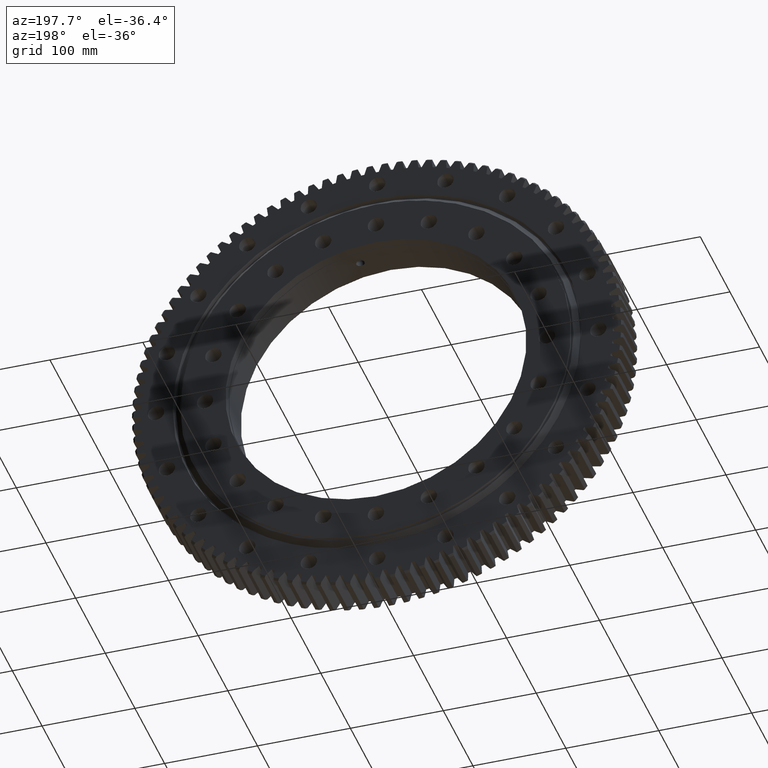
[diagram: clean part render]
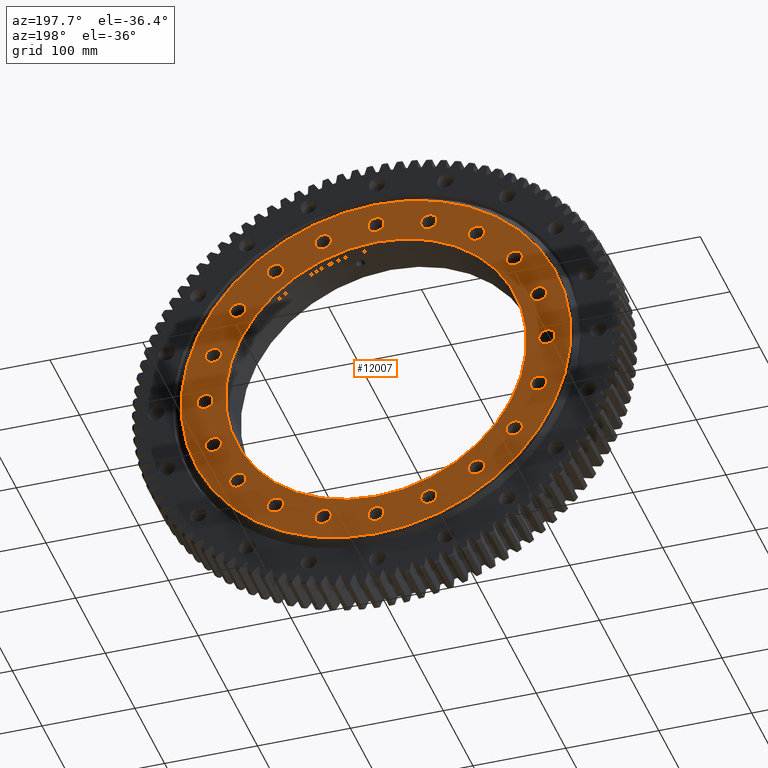
[diagram: same view with one face highlighted and labeled with its STEP entity id]
A machine part, auxiliary view. The second image highlights one B-rep face of the part: STEP entity #12007.
In plain terms, the highlighted planar face has unit normal (0, -1, 0).
Its self-contained STEP definition (entity closure, byte-faithful):
#53 = EDGE_LOOP ( 'NONE', ( #11007, #6164 ) ) ;
#180 = EDGE_CURVE ( 'NONE', #16531, #4082, #18659, .T. ) ;
#288 = DIRECTION ( 'NONE',  ( 0.0000000000000000000, 0.0000000000000000000, 1.000000000000000000 ) ) ;
#332 = CIRCLE ( 'NONE', #26550, 8.750000000000008900 ) ;
#368 = CARTESIAN_POINT ( 'NONE',  ( -174.9943989983088700, 26.99999999999997900, -65.60912696498857600 ) ) ;
#425 = EDGE_CURVE ( 'NONE', #6007, #21702, #18962, .T. ) ;
#471 = CARTESIAN_POINT ( 'NONE',  ( 56.85912696499056600, 26.99999999999998600, 174.9943989983081800 ) ) ;
#480 = EDGE_CURVE ( 'NONE', #1282, #13739, #23144, .T. ) ;
#510 = AXIS2_PLACEMENT_3D ( 'NONE', #10921, #25266, #12966 ) ;
#569 = DIRECTION ( 'NONE',  ( -3.081487911019577400E-033, 1.000000000000000000, -2.727064569436389700E-017 ) ) ;
#575 = DIRECTION ( 'NONE',  ( 0.9510565162951500900, 0.0000000000000000000, 0.3090169943749580000 ) ) ;
#585 = CARTESIAN_POINT ( 'NONE',  ( -108.1524864218163600, 26.99999999999997500, -148.8591269649893700 ) ) ;
#709 = ORIENTED_EDGE ( 'NONE', *, *, #20946, .F. ) ;
#728 = CARTESIAN_POINT ( 'NONE',  ( -148.8591269649913300, 26.99999999999997900, -99.40248642181360600 ) ) ;
#760 = CIRCLE ( 'NONE', #510, 8.750000000000014200 ) ;
#862 = CIRCLE ( 'NONE', #23913, 8.750000000000007100 ) ;
#893 = CIRCLE ( 'NONE', #10654, 8.750000000000008900 ) ;
#1008 = VERTEX_POINT ( 'NONE', #1975 ) ;
#1112 = VERTEX_POINT ( 'NONE', #3543 ) ;
#1222 = AXIS2_PLACEMENT_3D ( 'NONE', #25107, #12806, #575 ) ;
#1223 = VERTEX_POINT ( 'NONE', #15457 ) ;
#1282 = VERTEX_POINT ( 'NONE', #3079 ) ;
#1335 = CARTESIAN_POINT ( 'NONE',  ( -108.1524864218131400, 26.99999999999998600, 140.1091269649917600 ) ) ;
#1490 = ORIENTED_EDGE ( 'NONE', *, *, #17583, .F. ) ;
#1553 = DIRECTION ( 'NONE',  ( 6.162975822039154700E-033, 1.000000000000000000, -2.727064569436390300E-017 ) ) ;
#1577 = ORIENTED_EDGE ( 'NONE', *, *, #19407, .F. ) ;
#1607 = CARTESIAN_POINT ( 'NONE',  ( 56.85912696499056600, 26.99999999999998600, 183.7443989983081800 ) ) ;
#1643 = CARTESIAN_POINT ( 'NONE',  ( 174.9943989983084700, 26.99999999999998200, 56.85912696498977700 ) ) ;
#1649 = EDGE_CURVE ( 'NONE', #1223, #24769, #3588, .T. ) ;
#1662 = ORIENTED_EDGE ( 'NONE', *, *, #22255, .F. ) ;
#1715 = CIRCLE ( 'NONE', #25224, 162.0000000000000000 ) ;
#1738 = CIRCLE ( 'NONE', #19105, 8.749999999999998200 ) ;
#1760 = AXIS2_PLACEMENT_3D ( 'NONE', #23654, #15928, #5707 ) ;
#1783 = DIRECTION ( 'NONE',  ( 0.8090169943749407900, 0.0000000000000000000, 0.5877852522924824600 ) ) ;
#1814 = CARTESIAN_POINT ( 'NONE',  ( 56.85912696498916600, 26.99999999999997500, -166.2443989983086400 ) ) ;
#1863 = DIRECTION ( 'NONE',  ( -2.189528850507526700E-047, 1.000000000000000000, -2.727064569436389100E-017 ) ) ;
#1936 = EDGE_CURVE ( 'NONE', #10092, #20828, #23124, .T. ) ;
#1956 = EDGE_CURVE ( 'NONE', #6504, #25244, #4208, .T. ) ;
#1975 = CARTESIAN_POINT ( 'NONE',  ( 148.8591269649905700, 26.99999999999998200, 99.40248642181471400 ) ) ;
#2028 = VERTEX_POINT ( 'NONE', #22737 ) ;
#2124 = CARTESIAN_POINT ( 'NONE',  ( -174.9943989983076200, 26.99999999999998200, 56.85912696499237000 ) ) ;
#2142 = CARTESIAN_POINT ( 'NONE',  ( 108.1524864218142200, 26.99999999999997500, -148.8591269649909300 ) ) ;
#2263 = CARTESIAN_POINT ( 'NONE',  ( -174.9943989983088700, 26.99999999999997900, -56.85912696498856200 ) ) ;
#2283 = VERTEX_POINT ( 'NONE', #16803 ) ;
#2306 = CIRCLE ( 'NONE', #19066, 8.749999999999998200 ) ;
#2311 = ORIENTED_EDGE ( 'NONE', *, *, #10212, .T. ) ;
#2450 = DIRECTION ( 'NONE',  ( 0.0000000000000000000, 1.000000000000000000, -2.727064569436389100E-017 ) ) ;
#2534 = DIRECTION ( 'NONE',  ( -0.0000000000000000000, 1.000000000000000000, -2.727064569436389700E-017 ) ) ;
#2537 = ORIENTED_EDGE ( 'NONE', *, *, #13885, .F. ) ;
#2588 = VERTEX_POINT ( 'NONE', #16111 ) ;
#2635 = DIRECTION ( 'NONE',  ( -0.5877852522924687000, 0.0000000000000000000, -0.8090169943749507800 ) ) ;
#2707 = CIRCLE ( 'NONE', #8388, 8.750000000000016000 ) ;
#2782 = VERTEX_POINT ( 'NONE', #1335 ) ;
#2802 = ORIENTED_EDGE ( 'NONE', *, *, #17871, .F. ) ;
#2883 = VERTEX_POINT ( 'NONE', #13237 ) ;
#2916 = AXIS2_PLACEMENT_3D ( 'NONE', #14792, #2534, #16866 ) ;
#3078 = FACE_BOUND ( 'NONE', #10432, .T. ) ;
#3079 = CARTESIAN_POINT ( 'NONE',  ( 2.665606825049629400E-012, 26.99999999999998600, 175.2500000000000000 ) ) ;
#3159 = VERTEX_POINT ( 'NONE', #14395 ) ;
#3276 = CARTESIAN_POINT ( 'NONE',  ( 184.0000000000000000, 26.99999999999998200, 8.749999999999269900 ) ) ;
#3294 = CARTESIAN_POINT ( 'NONE',  ( 148.8591269649898300, 26.99999999999997900, -108.1524864218157800 ) ) ;
#3379 = CARTESIAN_POINT ( 'NONE',  ( 2.568451731851743800E-014, 26.99999999999997500, -209.7299999999999600 ) ) ;
#3389 = CIRCLE ( 'NONE', #10397, 8.750000000000016000 ) ;
#3494 = VERTEX_POINT ( 'NONE', #15979 ) ;
#3543 = CARTESIAN_POINT ( 'NONE',  ( 108.1524864218142200, 26.99999999999997500, -157.6091269649909300 ) ) ;
#3588 = CIRCLE ( 'NONE', #26511, 8.749999999999992900 ) ;
#3602 = CIRCLE ( 'NONE', #26288, 8.750000000000007100 ) ;
#3633 = DIRECTION ( 'NONE',  ( 0.3090169943749551100, 0.0000000000000000000, -0.9510565162951510900 ) ) ;
#3645 = ORIENTED_EDGE ( 'NONE', *, *, #23798, .T. ) ;
#3699 = DIRECTION ( 'NONE',  ( 0.9510565162951500900, 0.0000000000000000000, 0.3090169943749580000 ) ) ;
#3718 = FACE_BOUND ( 'NONE', #53, .T. ) ;
#3776 = DIRECTION ( 'NONE',  ( -3.081487911019577400E-033, 1.000000000000000000, -2.727064569436389700E-017 ) ) ;
#3845 = EDGE_CURVE ( 'NONE', #18768, #20442, #332, .T. ) ;
#3892 = CARTESIAN_POINT ( 'NONE',  ( -184.0000000000000000, 26.99999999999998200, 2.021366385319490700E-012 ) ) ;
#4082 = VERTEX_POINT ( 'NONE', #12869 ) ;
#4115 = VERTEX_POINT ( 'NONE', #3276 ) ;
#4142 = CARTESIAN_POINT ( 'NONE',  ( 0.0000000000000000000, 26.99999999999998900, 209.7299999999999600 ) ) ;
#4208 = CIRCLE ( 'NONE', #11753, 8.750000000000007100 ) ;
#4213 = DIRECTION ( 'NONE',  ( 0.5877852522924804600, 0.0000000000000000000, -0.8090169943749422300 ) ) ;
#4231 = EDGE_CURVE ( 'NONE', #24769, #1223, #20508, .T. ) ;
#4239 = ORIENTED_EDGE ( 'NONE', *, *, #11538, .F. ) ;
#4358 = FACE_BOUND ( 'NONE', #14518, .T. ) ;
#4538 = DIRECTION ( 'NONE',  ( 0.0000000000000000000, -1.000000000000000000, 2.727064569436389700E-017 ) ) ;
#4786 = CARTESIAN_POINT ( 'NONE',  ( -148.8591269649889700, 26.99999999999998200, 99.40248642181687400 ) ) ;
#4902 = ORIENTED_EDGE ( 'NONE', *, *, #7723, .F. ) ;
#4999 = FACE_BOUND ( 'NONE', #24206, .T. ) ;
#5044 = EDGE_LOOP ( 'NONE', ( #22884, #21122 ) ) ;
#5269 = AXIS2_PLACEMENT_3D ( 'NONE', #20013, #7741, #22081 ) ;
#5277 = EDGE_CURVE ( 'NONE', #20828, #10092, #5396, .T. ) ;
#5294 = EDGE_LOOP ( 'NONE', ( #709, #4239 ) ) ;
#5299 = CIRCLE ( 'NONE', #5269, 8.750000000000003600 ) ;
#5310 = CARTESIAN_POINT ( 'NONE',  ( 2.664535259100375300E-012, 26.99999999999998600, 192.7500000000000000 ) ) ;
#5393 = EDGE_CURVE ( 'NONE', #2782, #18575, #23994, .T. ) ;
#5396 = CIRCLE ( 'NONE', #9770, 8.750000000000007100 ) ;
#5458 = EDGE_LOOP ( 'NONE', ( #15641, #21276 ) ) ;
#5502 = AXIS2_PLACEMENT_3D ( 'NONE', #14133, #1863, #16211 ) ;
#5532 = AXIS2_PLACEMENT_3D ( 'NONE', #1643, #15982, #3699 ) ;
#5641 = FACE_BOUND ( 'NONE', #13521, .T. ) ;
#5663 = CARTESIAN_POINT ( 'NONE',  ( 56.85912696498916600, 26.99999999999997500, -174.9943989983086400 ) ) ;
#5707 = DIRECTION ( 'NONE',  ( -0.8090169943749481200, 0.0000000000000000000, 0.5877852522924721400 ) ) ;
#5870 = DIRECTION ( 'NONE',  ( -0.0000000000000000000, 1.000000000000000000, -2.727064569436389700E-017 ) ) ;
#5886 = AXIS2_PLACEMENT_3D ( 'NONE', #8325, #22657, #10379 ) ;
#5978 = ORIENTED_EDGE ( 'NONE', *, *, #24131, .F. ) ;
#6007 = VERTEX_POINT ( 'NONE', #368 ) ;
#6048 = AXIS2_PLACEMENT_3D ( 'NONE', #5663, #20007, #7735 ) ;
#6052 = CARTESIAN_POINT ( 'NONE',  ( 108.1524864218152400, 26.99999999999998600, 140.1091269649901700 ) ) ;
#6117 = DIRECTION ( 'NONE',  ( 0.0000000000000000000, 0.0000000000000000000, 1.000000000000000000 ) ) ;
#6164 = ORIENTED_EDGE ( 'NONE', *, *, #425, .F. ) ;
#6295 = CIRCLE ( 'NONE', #8948, 8.750000000000016000 ) ;
#6321 = CIRCLE ( 'NONE', #25414, 209.7299999999999600 ) ;
#6407 = CARTESIAN_POINT ( 'NONE',  ( -148.8591269649913300, 26.99999999999997900, -108.1524864218136200 ) ) ;
#6504 = VERTEX_POINT ( 'NONE', #1607 ) ;
#6639 = CARTESIAN_POINT ( 'NONE',  ( 0.0000000000000000000, 26.99999999999998200, 0.0000000000000000000 ) ) ;
#6650 = EDGE_CURVE ( 'NONE', #2883, #2028, #6295, .T. ) ;
#6770 = EDGE_CURVE ( 'NONE', #4115, #8127, #18769, .T. ) ;
#6854 = AXIS2_PLACEMENT_3D ( 'NONE', #2263, #12295, #21526 ) ;
#6870 = VERTEX_POINT ( 'NONE', #10944 ) ;
#6896 = ORIENTED_EDGE ( 'NONE', *, *, #1649, .F. ) ;
#7037 = CARTESIAN_POINT ( 'NONE',  ( 0.0000000000000000000, 26.99999999999998900, 209.7299999999999600 ) ) ;
#7082 = AXIS2_PLACEMENT_3D ( 'NONE', #20171, #7883, #22226 ) ;
#7253 = EDGE_CURVE ( 'NONE', #23596, #21769, #893, .T. ) ;
#7438 = CIRCLE ( 'NONE', #11533, 8.750000000000003600 ) ;
#7460 = CARTESIAN_POINT ( 'NONE',  ( -174.9943989983076200, 26.99999999999998200, 56.85912696499237000 ) ) ;
#7466 = VERTEX_POINT ( 'NONE', #13615 ) ;
#7602 = AXIS2_PLACEMENT_3D ( 'NONE', #21253, #8970, #23320 ) ;
#7685 = ORIENTED_EDGE ( 'NONE', *, *, #13131, .F. ) ;
#7723 = EDGE_CURVE ( 'NONE', #25244, #6504, #862, .T. ) ;
#7732 = EDGE_LOOP ( 'NONE', ( #14685, #13330 ) ) ;
#7735 = DIRECTION ( 'NONE',  ( 0.3090169943749551100, 0.0000000000000000000, -0.9510565162951510900 ) ) ;
#7741 = DIRECTION ( 'NONE',  ( 3.081487911019577400E-033, 1.000000000000000000, -2.727064569436389100E-017 ) ) ;
#7883 = DIRECTION ( 'NONE',  ( 0.0000000000000000000, 1.000000000000000000, -2.727064569436389100E-017 ) ) ;
#7901 = CIRCLE ( 'NONE', #26126, 8.750000000000008900 ) ;
#7913 = EDGE_CURVE ( 'NONE', #3494, #11996, #7901, .T. ) ;
#8014 = CARTESIAN_POINT ( 'NONE',  ( -108.1524864218163600, 26.99999999999997500, -140.1091269649893700 ) ) ;
#8097 = DIRECTION ( 'NONE',  ( 3.081487911019577400E-033, 1.000000000000000000, -2.727064569436389700E-017 ) ) ;
#8127 = VERTEX_POINT ( 'NONE', #11429 ) ;
#8155 = CARTESIAN_POINT ( 'NONE',  ( 148.8591269649898300, 26.99999999999997900, -116.9024864218157900 ) ) ;
#8247 = DIRECTION ( 'NONE',  ( 0.0000000000000000000, -2.727064569436389700E-017, -1.000000000000000000 ) ) ;
#8288 = EDGE_CURVE ( 'NONE', #23135, #11624, #11073, .T. ) ;
#8325 = CARTESIAN_POINT ( 'NONE',  ( -148.8591269649889700, 26.99999999999998200, 108.1524864218168700 ) ) ;
#8388 = AXIS2_PLACEMENT_3D ( 'NONE', #12798, #569, #14882 ) ;
#8409 = DIRECTION ( 'NONE',  ( 0.0000000000000000000, 1.000000000000000000, -2.727064569436390300E-017 ) ) ;
#8452 = CARTESIAN_POINT ( 'NONE',  ( -148.8591269649913300, 26.99999999999997900, -108.1524864218136200 ) ) ;
#8457 = DIRECTION ( 'NONE',  ( -0.8090169943749440100, 0.0000000000000000000, -0.5877852522924776900 ) ) ;
#8473 = CIRCLE ( 'NONE', #10698, 8.750000000000008900 ) ;
#8517 = FACE_BOUND ( 'NONE', #24808, .T. ) ;
#8699 = DIRECTION ( 'NONE',  ( 0.0000000000000000000, -2.141633920959021100E-017, -1.000000000000000000 ) ) ;
#8710 = DIRECTION ( 'NONE',  ( 0.0000000000000000000, 1.000000000000000000, -2.727064569436389700E-017 ) ) ;
#8797 = CARTESIAN_POINT ( 'NONE',  ( 174.9943989983084700, 26.99999999999998200, 65.60912696498978400 ) ) ;
#8871 = DIRECTION ( 'NONE',  ( -3.081487911019577400E-033, 1.000000000000000000, -2.727064569436389700E-017 ) ) ;
#8948 = AXIS2_PLACEMENT_3D ( 'NONE', #22586, #10310, #13891 ) ;
#8970 = DIRECTION ( 'NONE',  ( -2.189528850507526700E-047, 1.000000000000000000, -2.727064569436389100E-017 ) ) ;
#9012 = AXIS2_PLACEMENT_3D ( 'NONE', #3892, #16170, #26431 ) ;
#9103 = AXIS2_PLACEMENT_3D ( 'NONE', #26329, #14050, #1783 ) ;
#9170 = FACE_BOUND ( 'NONE', #5294, .T. ) ;
#9217 = EDGE_CURVE ( 'NONE', #25053, #22278, #10090, .T. ) ;
#9237 = EDGE_CURVE ( 'NONE', #4082, #16531, #2707, .T. ) ;
#9278 = CIRCLE ( 'NONE', #24082, 8.750000000000008900 ) ;
#9288 = ORIENTED_EDGE ( 'NONE', *, *, #18839, .F. ) ;
#9406 = CARTESIAN_POINT ( 'NONE',  ( -174.9943989983076200, 26.99999999999998200, 48.10912696499236300 ) ) ;
#9432 = CARTESIAN_POINT ( 'NONE',  ( -184.0000000000000000, 26.99999999999998200, 2.021366385319490700E-012 ) ) ;
#9511 = DIRECTION ( 'NONE',  ( -0.9510565162951543100, 0.0000000000000000000, 0.3090169943749448400 ) ) ;
#9518 = EDGE_LOOP ( 'NONE', ( #7685, #2802 ) ) ;
#9534 = CARTESIAN_POINT ( 'NONE',  ( 56.85912696498916600, 26.99999999999997500, -183.7443989983086700 ) ) ;
#9705 = CARTESIAN_POINT ( 'NONE',  ( 184.0000000000000000, 26.99999999999998200, -7.379738674927133800E-013 ) ) ;
#9722 = EDGE_CURVE ( 'NONE', #18575, #2782, #760, .T. ) ;
#9770 = AXIS2_PLACEMENT_3D ( 'NONE', #9432, #21533, #25825 ) ;
#9823 = FACE_BOUND ( 'NONE', #17151, .T. ) ;
#9907 = EDGE_LOOP ( 'NONE', ( #24330, #4902 ) ) ;
#9914 = CARTESIAN_POINT ( 'NONE',  ( 2.664535259100375300E-012, 26.99999999999998600, 184.0000000000000000 ) ) ;
#9970 = CARTESIAN_POINT ( 'NONE',  ( 148.8591269649905700, 26.99999999999998200, 116.9024864218147400 ) ) ;
#10029 = EDGE_CURVE ( 'NONE', #3159, #22425, #16494, .T. ) ;
#10090 = CIRCLE ( 'NONE', #2916, 209.7299999999999600 ) ;
#10092 = VERTEX_POINT ( 'NONE', #26583 ) ;
#10136 = AXIS2_PLACEMENT_3D ( 'NONE', #2142, #16483, #4213 ) ;
#10212 = EDGE_CURVE ( 'NONE', #7466, #23257, #11973, .T. ) ;
#10282 = CARTESIAN_POINT ( 'NONE',  ( 56.85912696499056600, 26.99999999999998600, 174.9943989983081800 ) ) ;
#10310 = DIRECTION ( 'NONE',  ( 3.081487911019577400E-033, 1.000000000000000000, -2.727064569436390300E-017 ) ) ;
#10379 = DIRECTION ( 'NONE',  ( -0.8090169943749481200, 0.0000000000000000000, 0.5877852522924721400 ) ) ;
#10397 = AXIS2_PLACEMENT_3D ( 'NONE', #23828, #11517, #25855 ) ;
#10432 = EDGE_LOOP ( 'NONE', ( #23588, #1662 ) ) ;
#10519 = DIRECTION ( 'NONE',  ( -0.8090169943749440100, 0.0000000000000000000, -0.5877852522924776900 ) ) ;
#10604 = VERTEX_POINT ( 'NONE', #8014 ) ;
#10634 = ORIENTED_EDGE ( 'NONE', *, *, #25447, .F. ) ;
#10654 = AXIS2_PLACEMENT_3D ( 'NONE', #2124, #16462, #22470 ) ;
#10698 = AXIS2_PLACEMENT_3D ( 'NONE', #16056, #3776, #18098 ) ;
#10829 = EDGE_CURVE ( 'NONE', #13561, #16450, #23992, .T. ) ;
#10921 = CARTESIAN_POINT ( 'NONE',  ( -108.1524864218131400, 26.99999999999998600, 148.8591269649917600 ) ) ;
#10940 = CARTESIAN_POINT ( 'NONE',  ( 56.85912696498916600, 26.99999999999997500, -174.9943989983086400 ) ) ;
#10944 = CARTESIAN_POINT ( 'NONE',  ( -56.85912696499170900, 26.99999999999997500, -166.2443989983077900 ) ) ;
#11007 = ORIENTED_EDGE ( 'NONE', *, *, #24740, .F. ) ;
#11038 = CARTESIAN_POINT ( 'NONE',  ( -108.1524864218131400, 26.99999999999998600, 157.6091269649917600 ) ) ;
#11073 = CIRCLE ( 'NONE', #1760, 8.749999999999998200 ) ;
#11371 = EDGE_CURVE ( 'NONE', #22278, #25053, #6321, .T. ) ;
#11429 = CARTESIAN_POINT ( 'NONE',  ( 184.0000000000000000, 26.99999999999998200, -8.750000000000744300 ) ) ;
#11517 = DIRECTION ( 'NONE',  ( 3.081487911019577400E-033, 1.000000000000000000, -2.727064569436390300E-017 ) ) ;
#11533 = AXIS2_PLACEMENT_3D ( 'NONE', #585, #14897, #2635 ) ;
#11538 = EDGE_CURVE ( 'NONE', #2588, #23123, #21386, .T. ) ;
#11624 = VERTEX_POINT ( 'NONE', #4786 ) ;
#11660 = DIRECTION ( 'NONE',  ( -3.081487911019577400E-033, 1.000000000000000000, -2.727064569436389100E-017 ) ) ;
#11693 = ORIENTED_EDGE ( 'NONE', *, *, #4231, .F. ) ;
#11745 = DIRECTION ( 'NONE',  ( 1.000000000000000000, 0.0000000000000000000, 1.047444401652939500E-014 ) ) ;
#11753 = AXIS2_PLACEMENT_3D ( 'NONE', #10282, #21217, #24968 ) ;
#11855 = EDGE_CURVE ( 'NONE', #20442, #18768, #19112, .T. ) ;
#11933 = VERTEX_POINT ( 'NONE', #9970 ) ;
#11957 = ORIENTED_EDGE ( 'NONE', *, *, #21324, .F. ) ;
#11973 = CIRCLE ( 'NONE', #24724, 162.0000000000000000 ) ;
#11996 = VERTEX_POINT ( 'NONE', #8155 ) ;
#12007 = ADVANCED_FACE ( 'NONE', ( #26155, #4999, #5641, #17824, #21361, #20718, #15252, #9823, #4358, #25508, #20078, #14597, #9170, #3718, #24872, #19426, #13964, #8517, #3078, #24241, #18767, #13323 ), #18458, .F. ) ;
#12081 = ORIENTED_EDGE ( 'NONE', *, *, #6770, .F. ) ;
#12158 = DIRECTION ( 'NONE',  ( -3.081487911019577400E-033, 1.000000000000000000, -2.727064569436389700E-017 ) ) ;
#12295 = DIRECTION ( 'NONE',  ( 3.081487911019577400E-033, 1.000000000000000000, -2.727064569436389700E-017 ) ) ;
#12520 = DIRECTION ( 'NONE',  ( 0.0000000000000000000, 1.000000000000000000, -2.727064569436389700E-017 ) ) ;
#12722 = DIRECTION ( 'NONE',  ( -3.081487911019577400E-033, 1.000000000000000000, -2.727064569436389700E-017 ) ) ;
#12798 = CARTESIAN_POINT ( 'NONE',  ( 174.9943989983079600, 26.99999999999997900, -56.85912696499117700 ) ) ;
#12806 = DIRECTION ( 'NONE',  ( -3.081487911019577400E-033, 1.000000000000000000, -2.727064569436389700E-017 ) ) ;
#12849 = AXIS2_PLACEMENT_3D ( 'NONE', #20701, #8409, #22754 ) ;
#12869 = CARTESIAN_POINT ( 'NONE',  ( 174.9943989983079600, 26.99999999999997900, -48.10912696499116900 ) ) ;
#12966 = DIRECTION ( 'NONE',  ( -0.5877852522924742500, 0.0000000000000000000, 0.8090169943749466700 ) ) ;
#12987 = EDGE_LOOP ( 'NONE', ( #2311, #3645 ) ) ;
#13131 = EDGE_CURVE ( 'NONE', #6870, #2283, #1738, .T. ) ;
#13231 = CARTESIAN_POINT ( 'NONE',  ( 174.9943989983079600, 26.99999999999997900, -65.60912696499119100 ) ) ;
#13237 = CARTESIAN_POINT ( 'NONE',  ( -56.85912696498792900, 26.99999999999998600, 183.7443989983090700 ) ) ;
#13296 = CARTESIAN_POINT ( 'NONE',  ( -108.1524864218163600, 26.99999999999997500, -157.6091269649893700 ) ) ;
#13323 = FACE_OUTER_BOUND ( 'NONE', #5044, .T. ) ;
#13330 = ORIENTED_EDGE ( 'NONE', *, *, #17730, .F. ) ;
#13425 = CARTESIAN_POINT ( 'NONE',  ( 1.983927814618712200E-014, 26.99999999999997900, -162.0000000000000000 ) ) ;
#13521 = EDGE_LOOP ( 'NONE', ( #2537, #5978 ) ) ;
#13551 = ORIENTED_EDGE ( 'NONE', *, *, #5277, .F. ) ;
#13561 = VERTEX_POINT ( 'NONE', #8797 ) ;
#13567 = ORIENTED_EDGE ( 'NONE', *, *, #1936, .F. ) ;
#13615 = CARTESIAN_POINT ( 'NONE',  ( 0.0000000000000000000, 26.99999999999998600, 162.0000000000000000 ) ) ;
#13706 = AXIS2_PLACEMENT_3D ( 'NONE', #9914, #14928, #6117 ) ;
#13739 = VERTEX_POINT ( 'NONE', #5310 ) ;
#13885 = EDGE_CURVE ( 'NONE', #11933, #1008, #8473, .T. ) ;
#13891 = DIRECTION ( 'NONE',  ( -0.3090169943749477300, 0.0000000000000000000, 0.9510565162951535300 ) ) ;
#13964 = FACE_BOUND ( 'NONE', #19699, .T. ) ;
#14050 = DIRECTION ( 'NONE',  ( -3.081487911019577400E-033, 1.000000000000000000, -2.727064569436389700E-017 ) ) ;
#14133 = CARTESIAN_POINT ( 'NONE',  ( -1.379670126406102400E-012, 26.99999999999997500, -184.0000000000000000 ) ) ;
#14395 = CARTESIAN_POINT ( 'NONE',  ( -1.378598560456848300E-012, 26.99999999999997500, -192.7500000000000000 ) ) ;
#14518 = EDGE_LOOP ( 'NONE', ( #19360, #24649 ) ) ;
#14597 = FACE_BOUND ( 'NONE', #16727, .T. ) ;
#14611 = ORIENTED_EDGE ( 'NONE', *, *, #8288, .F. ) ;
#14635 = ORIENTED_EDGE ( 'NONE', *, *, #9722, .F. ) ;
#14685 = ORIENTED_EDGE ( 'NONE', *, *, #7253, .F. ) ;
#14694 = CARTESIAN_POINT ( 'NONE',  ( 108.1524864218142200, 26.99999999999997500, -140.1091269649909300 ) ) ;
#14709 = CARTESIAN_POINT ( 'NONE',  ( -56.85912696499170900, 26.99999999999997500, -174.9943989983077900 ) ) ;
#14792 = CARTESIAN_POINT ( 'NONE',  ( 0.0000000000000000000, 26.99999999999998200, -1.582491197327736200E-015 ) ) ;
#14882 = DIRECTION ( 'NONE',  ( 0.9510565162951565300, 0.0000000000000000000, -0.3090169943749382400 ) ) ;
#14897 = DIRECTION ( 'NONE',  ( 3.081487911019577400E-033, 1.000000000000000000, -2.727064569436389100E-017 ) ) ;
#14928 = DIRECTION ( 'NONE',  ( 0.0000000000000000000, 1.000000000000000000, -2.727064569436389700E-017 ) ) ;
#14954 = DIRECTION ( 'NONE',  ( 0.5877852522924629200, 0.0000000000000000000, 0.8090169943749548900 ) ) ;
#15252 = FACE_BOUND ( 'NONE', #17306, .T. ) ;
#15429 = DIRECTION ( 'NONE',  ( 0.8090169943749534500, 0.0000000000000000000, -0.5877852522924650300 ) ) ;
#15457 = CARTESIAN_POINT ( 'NONE',  ( 108.1524864218152400, 26.99999999999998600, 157.6091269649902000 ) ) ;
#15499 = CARTESIAN_POINT ( 'NONE',  ( -184.0000000000000000, 26.99999999999998200, -8.749999999997987400 ) ) ;
#15641 = ORIENTED_EDGE ( 'NONE', *, *, #9237, .F. ) ;
#15804 = CIRCLE ( 'NONE', #9103, 8.750000000000008900 ) ;
#15928 = DIRECTION ( 'NONE',  ( 3.081487911019577400E-033, 1.000000000000000000, -2.727064569436389700E-017 ) ) ;
#15979 = CARTESIAN_POINT ( 'NONE',  ( 148.8591269649898300, 26.99999999999997900, -99.40248642181578000 ) ) ;
#15982 = DIRECTION ( 'NONE',  ( -3.081487911019577400E-033, 1.000000000000000000, -2.727064569436389700E-017 ) ) ;
#16056 = CARTESIAN_POINT ( 'NONE',  ( 148.8591269649905700, 26.99999999999998200, 108.1524864218147300 ) ) ;
#16076 = CARTESIAN_POINT ( 'NONE',  ( -174.9943989983076200, 26.99999999999998200, 65.60912696499238500 ) ) ;
#16111 = CARTESIAN_POINT ( 'NONE',  ( -148.8591269649913300, 26.99999999999997900, -116.9024864218136200 ) ) ;
#16120 = ORIENTED_EDGE ( 'NONE', *, *, #16312, .F. ) ;
#16170 = DIRECTION ( 'NONE',  ( 3.081487911019577400E-033, 1.000000000000000000, -2.727064569436389400E-017 ) ) ;
#16211 = DIRECTION ( 'NONE',  ( 6.982962677686255700E-015, 0.0000000000000000000, -1.000000000000000000 ) ) ;
#16231 = CARTESIAN_POINT ( 'NONE',  ( 108.1524864218152400, 26.99999999999998600, 148.8591269649901700 ) ) ;
#16312 = EDGE_CURVE ( 'NONE', #20608, #1112, #19284, .T. ) ;
#16342 = EDGE_CURVE ( 'NONE', #1112, #20608, #24098, .T. ) ;
#16450 = VERTEX_POINT ( 'NONE', #17020 ) ;
#16462 = DIRECTION ( 'NONE',  ( 9.244463733058732100E-033, 1.000000000000000000, -2.727064569436389700E-017 ) ) ;
#16473 = CIRCLE ( 'NONE', #21623, 8.750000000000008900 ) ;
#16483 = DIRECTION ( 'NONE',  ( 0.0000000000000000000, 1.000000000000000000, -2.727064569436390300E-017 ) ) ;
#16494 = CIRCLE ( 'NONE', #5502, 8.750000000000007100 ) ;
#16531 = VERTEX_POINT ( 'NONE', #13231 ) ;
#16677 = CIRCLE ( 'NONE', #5886, 8.749999999999998200 ) ;
#16727 = EDGE_LOOP ( 'NONE', ( #23182, #22082 ) ) ;
#16782 = DIRECTION ( 'NONE',  ( -0.3090169943749412300, 0.0000000000000000000, -0.9510565162951554200 ) ) ;
#16803 = CARTESIAN_POINT ( 'NONE',  ( -56.85912696499170900, 26.99999999999997500, -183.7443989983077900 ) ) ;
#16816 = CARTESIAN_POINT ( 'NONE',  ( 0.0000000000000000000, 26.99999999999998200, 0.0000000000000000000 ) ) ;
#16856 = CARTESIAN_POINT ( 'NONE',  ( 174.9943989983079600, 26.99999999999997900, -56.85912696499117700 ) ) ;
#16866 = DIRECTION ( 'NONE',  ( 0.0000000000000000000, 3.308488963861740900E-017, 1.000000000000000000 ) ) ;
#16976 = AXIS2_PLACEMENT_3D ( 'NONE', #16856, #12158, #25501 ) ;
#17020 = CARTESIAN_POINT ( 'NONE',  ( 174.9943989983084700, 26.99999999999998200, 48.10912696498977000 ) ) ;
#17134 = VERTEX_POINT ( 'NONE', #13296 ) ;
#17151 = EDGE_LOOP ( 'NONE', ( #16120, #18083 ) ) ;
#17281 = DIRECTION ( 'NONE',  ( -3.081487911019577400E-033, 1.000000000000000000, -2.727064569436389100E-017 ) ) ;
#17299 = AXIS2_PLACEMENT_3D ( 'NONE', #19083, #8871, #14954 ) ;
#17306 = EDGE_LOOP ( 'NONE', ( #18989, #18425 ) ) ;
#17535 = ORIENTED_EDGE ( 'NONE', *, *, #10029, .F. ) ;
#17566 = CARTESIAN_POINT ( 'NONE',  ( -174.9943989983088700, 26.99999999999997900, -48.10912696498855500 ) ) ;
#17583 = EDGE_CURVE ( 'NONE', #22425, #3159, #24056, .T. ) ;
#17730 = EDGE_CURVE ( 'NONE', #21769, #23596, #9278, .T. ) ;
#17824 = FACE_BOUND ( 'NONE', #22372, .T. ) ;
#17871 = EDGE_CURVE ( 'NONE', #2283, #6870, #22424, .T. ) ;
#17937 = AXIS2_PLACEMENT_3D ( 'NONE', #9705, #24050, #11745 ) ;
#17960 = DIRECTION ( 'NONE',  ( -1.540743955509788700E-033, 1.000000000000000000, -2.727064569436389100E-017 ) ) ;
#18041 = AXIS2_PLACEMENT_3D ( 'NONE', #6407, #20747, #8457 ) ;
#18083 = ORIENTED_EDGE ( 'NONE', *, *, #16342, .F. ) ;
#18098 = DIRECTION ( 'NONE',  ( 0.8090169943749407900, 0.0000000000000000000, 0.5877852522924824600 ) ) ;
#18144 = CARTESIAN_POINT ( 'NONE',  ( 0.0000000000000000000, 26.99999999999998200, -1.582491197327736200E-015 ) ) ;
#18168 = ORIENTED_EDGE ( 'NONE', *, *, #10829, .F. ) ;
#18321 = CARTESIAN_POINT ( 'NONE',  ( -1.379670126406102400E-012, 26.99999999999997500, -175.2500000000000000 ) ) ;
#18425 = ORIENTED_EDGE ( 'NONE', *, *, #23505, .F. ) ;
#18458 = PLANE ( 'NONE',  #19781 ) ;
#18504 = EDGE_CURVE ( 'NONE', #10604, #17134, #7438, .T. ) ;
#18575 = VERTEX_POINT ( 'NONE', #11038 ) ;
#18603 = EDGE_LOOP ( 'NONE', ( #13567, #13551 ) ) ;
#18659 = CIRCLE ( 'NONE', #16976, 8.750000000000016000 ) ;
#18757 = EDGE_LOOP ( 'NONE', ( #12081, #11957 ) ) ;
#18767 = FACE_BOUND ( 'NONE', #12987, .T. ) ;
#18768 = VERTEX_POINT ( 'NONE', #9534 ) ;
#18769 = CIRCLE ( 'NONE', #21319, 8.750000000000007100 ) ;
#18839 = EDGE_CURVE ( 'NONE', #16450, #13561, #20878, .T. ) ;
#18862 = DIRECTION ( 'NONE',  ( 0.0000000000000000000, -2.141633920959021100E-017, -1.000000000000000000 ) ) ;
#18962 = CIRCLE ( 'NONE', #6854, 8.749999999999998200 ) ;
#18989 = ORIENTED_EDGE ( 'NONE', *, *, #7913, .F. ) ;
#19066 = AXIS2_PLACEMENT_3D ( 'NONE', #20397, #8097, #22453 ) ;
#19083 = CARTESIAN_POINT ( 'NONE',  ( 108.1524864218152400, 26.99999999999998600, 148.8591269649901700 ) ) ;
#19105 = AXIS2_PLACEMENT_3D ( 'NONE', #14709, #2450, #16782 ) ;
#19112 = CIRCLE ( 'NONE', #6048, 8.750000000000008900 ) ;
#19284 = CIRCLE ( 'NONE', #10136, 8.749999999999992900 ) ;
#19324 = ORIENTED_EDGE ( 'NONE', *, *, #5393, .F. ) ;
#19360 = ORIENTED_EDGE ( 'NONE', *, *, #11855, .F. ) ;
#19407 = EDGE_CURVE ( 'NONE', #11624, #23135, #16677, .T. ) ;
#19426 = FACE_BOUND ( 'NONE', #7732, .T. ) ;
#19484 = CIRCLE ( 'NONE', #19832, 8.750000000000008900 ) ;
#19699 = EDGE_LOOP ( 'NONE', ( #14611, #1577 ) ) ;
#19781 = AXIS2_PLACEMENT_3D ( 'NONE', #4142, #20533, #8247 ) ;
#19832 = AXIS2_PLACEMENT_3D ( 'NONE', #8452, #22798, #10519 ) ;
#19925 = CARTESIAN_POINT ( 'NONE',  ( -108.1524864218131400, 26.99999999999998600, 148.8591269649917600 ) ) ;
#20007 = DIRECTION ( 'NONE',  ( -1.540743955509788700E-033, 1.000000000000000000, -2.727064569436389100E-017 ) ) ;
#20013 = CARTESIAN_POINT ( 'NONE',  ( -108.1524864218163600, 26.99999999999997500, -148.8591269649893700 ) ) ;
#20078 = FACE_BOUND ( 'NONE', #9518, .T. ) ;
#20171 = CARTESIAN_POINT ( 'NONE',  ( -56.85912696499170900, 26.99999999999997500, -174.9943989983077900 ) ) ;
#20222 = DIRECTION ( 'NONE',  ( 0.0000000000000000000, 3.308488963861740900E-017, 1.000000000000000000 ) ) ;
#20397 = CARTESIAN_POINT ( 'NONE',  ( -174.9943989983088700, 26.99999999999997900, -56.85912696498856200 ) ) ;
#20442 = VERTEX_POINT ( 'NONE', #1814 ) ;
#20508 = CIRCLE ( 'NONE', #17299, 8.749999999999992900 ) ;
#20533 = DIRECTION ( 'NONE',  ( 0.0000000000000000000, -1.000000000000000000, 2.727064569436389700E-017 ) ) ;
#20608 = VERTEX_POINT ( 'NONE', #14694 ) ;
#20701 = CARTESIAN_POINT ( 'NONE',  ( 108.1524864218142200, 26.99999999999997500, -148.8591269649909300 ) ) ;
#20718 = FACE_BOUND ( 'NONE', #5458, .T. ) ;
#20747 = DIRECTION ( 'NONE',  ( -3.081487911019577400E-033, 1.000000000000000000, -2.727064569436390000E-017 ) ) ;
#20776 = DIRECTION ( 'NONE',  ( 0.5877852522924629200, 0.0000000000000000000, 0.8090169943749548900 ) ) ;
#20828 = VERTEX_POINT ( 'NONE', #15499 ) ;
#20878 = CIRCLE ( 'NONE', #5532, 8.750000000000017800 ) ;
#20946 = EDGE_CURVE ( 'NONE', #23123, #2588, #19484, .T. ) ;
#20984 = DIRECTION ( 'NONE',  ( 0.0000000000000000000, -1.000000000000000000, 2.727064569436389700E-017 ) ) ;
#21000 = DIRECTION ( 'NONE',  ( 0.3090169943749353500, 0.0000000000000000000, 0.9510565162951575300 ) ) ;
#21122 = ORIENTED_EDGE ( 'NONE', *, *, #11371, .T. ) ;
#21153 = DIRECTION ( 'NONE',  ( -3.081487911019577400E-033, 1.000000000000000000, -2.727064569436389700E-017 ) ) ;
#21217 = DIRECTION ( 'NONE',  ( 0.0000000000000000000, 1.000000000000000000, -2.727064569436389700E-017 ) ) ;
#21247 = CARTESIAN_POINT ( 'NONE',  ( -148.8591269649889700, 26.99999999999998200, 116.9024864218168900 ) ) ;
#21253 = CARTESIAN_POINT ( 'NONE',  ( -1.379670126406102400E-012, 26.99999999999997500, -184.0000000000000000 ) ) ;
#21276 = ORIENTED_EDGE ( 'NONE', *, *, #180, .F. ) ;
#21319 = AXIS2_PLACEMENT_3D ( 'NONE', #25033, #12722, #24681 ) ;
#21323 = ORIENTED_EDGE ( 'NONE', *, *, #480, .F. ) ;
#21324 = EDGE_CURVE ( 'NONE', #8127, #4115, #22665, .T. ) ;
#21361 = FACE_BOUND ( 'NONE', #18757, .T. ) ;
#21386 = CIRCLE ( 'NONE', #18041, 8.750000000000008900 ) ;
#21526 = DIRECTION ( 'NONE',  ( -0.9510565162951522000, 0.0000000000000000000, -0.3090169943749515600 ) ) ;
#21533 = DIRECTION ( 'NONE',  ( 3.081487911019577400E-033, 1.000000000000000000, -2.727064569436389400E-017 ) ) ;
#21623 = AXIS2_PLACEMENT_3D ( 'NONE', #23968, #11660, #26004 ) ;
#21702 = VERTEX_POINT ( 'NONE', #17566 ) ;
#21769 = VERTEX_POINT ( 'NONE', #9406 ) ;
#21792 = DIRECTION ( 'NONE',  ( 9.244463733058732100E-033, 1.000000000000000000, -2.727064569436389700E-017 ) ) ;
#21978 = CARTESIAN_POINT ( 'NONE',  ( 56.85912696499056600, 26.99999999999998600, 166.2443989983081800 ) ) ;
#22081 = DIRECTION ( 'NONE',  ( -0.5877852522924687000, 0.0000000000000000000, -0.8090169943749507800 ) ) ;
#22082 = ORIENTED_EDGE ( 'NONE', *, *, #22819, .F. ) ;
#22226 = DIRECTION ( 'NONE',  ( -0.3090169943749412300, 0.0000000000000000000, -0.9510565162951554200 ) ) ;
#22255 = EDGE_CURVE ( 'NONE', #2028, #2883, #3389, .T. ) ;
#22278 = VERTEX_POINT ( 'NONE', #3379 ) ;
#22372 = EDGE_LOOP ( 'NONE', ( #18168, #9288 ) ) ;
#22424 = CIRCLE ( 'NONE', #7082, 8.749999999999998200 ) ;
#22425 = VERTEX_POINT ( 'NONE', #18321 ) ;
#22453 = DIRECTION ( 'NONE',  ( -0.9510565162951522000, 0.0000000000000000000, -0.3090169943749515600 ) ) ;
#22470 = DIRECTION ( 'NONE',  ( -0.9510565162951543100, 0.0000000000000000000, 0.3090169943749448400 ) ) ;
#22586 = CARTESIAN_POINT ( 'NONE',  ( -56.85912696498792900, 26.99999999999998600, 174.9943989983090700 ) ) ;
#22657 = DIRECTION ( 'NONE',  ( 3.081487911019577400E-033, 1.000000000000000000, -2.727064569436389700E-017 ) ) ;
#22665 = CIRCLE ( 'NONE', #17937, 8.750000000000007100 ) ;
#22737 = CARTESIAN_POINT ( 'NONE',  ( -56.85912696498792900, 26.99999999999998600, 166.2443989983090700 ) ) ;
#22754 = DIRECTION ( 'NONE',  ( 0.5877852522924804600, 0.0000000000000000000, -0.8090169943749422300 ) ) ;
#22798 = DIRECTION ( 'NONE',  ( -3.081487911019577400E-033, 1.000000000000000000, -2.727064569436390000E-017 ) ) ;
#22819 = EDGE_CURVE ( 'NONE', #17134, #10604, #5299, .T. ) ;
#22884 = ORIENTED_EDGE ( 'NONE', *, *, #9217, .T. ) ;
#23123 = VERTEX_POINT ( 'NONE', #728 ) ;
#23124 = CIRCLE ( 'NONE', #9012, 8.750000000000007100 ) ;
#23135 = VERTEX_POINT ( 'NONE', #21247 ) ;
#23144 = CIRCLE ( 'NONE', #13706, 8.750000000000007100 ) ;
#23182 = ORIENTED_EDGE ( 'NONE', *, *, #18504, .F. ) ;
#23257 = VERTEX_POINT ( 'NONE', #13425 ) ;
#23320 = DIRECTION ( 'NONE',  ( 6.982962677686255700E-015, 0.0000000000000000000, -1.000000000000000000 ) ) ;
#23505 = EDGE_CURVE ( 'NONE', #11996, #3494, #16473, .T. ) ;
#23514 = AXIS2_PLACEMENT_3D ( 'NONE', #19925, #1553, #26082 ) ;
#23588 = ORIENTED_EDGE ( 'NONE', *, *, #6650, .F. ) ;
#23596 = VERTEX_POINT ( 'NONE', #16076 ) ;
#23654 = CARTESIAN_POINT ( 'NONE',  ( -148.8591269649889700, 26.99999999999998200, 108.1524864218168700 ) ) ;
#23798 = EDGE_CURVE ( 'NONE', #23257, #7466, #1715, .T. ) ;
#23828 = CARTESIAN_POINT ( 'NONE',  ( -56.85912696498792900, 26.99999999999998600, 174.9943989983090700 ) ) ;
#23869 = EDGE_LOOP ( 'NONE', ( #1490, #17535 ) ) ;
#23913 = AXIS2_PLACEMENT_3D ( 'NONE', #471, #8710, #21000 ) ;
#23968 = CARTESIAN_POINT ( 'NONE',  ( 148.8591269649898300, 26.99999999999997900, -108.1524864218157800 ) ) ;
#23992 = CIRCLE ( 'NONE', #1222, 8.750000000000017800 ) ;
#23994 = CIRCLE ( 'NONE', #23514, 8.750000000000014200 ) ;
#24050 = DIRECTION ( 'NONE',  ( -3.081487911019577400E-033, 1.000000000000000000, -2.727064569436389700E-017 ) ) ;
#24056 = CIRCLE ( 'NONE', #7602, 8.750000000000007100 ) ;
#24082 = AXIS2_PLACEMENT_3D ( 'NONE', #7460, #21792, #9511 ) ;
#24098 = CIRCLE ( 'NONE', #12849, 8.749999999999992900 ) ;
#24131 = EDGE_CURVE ( 'NONE', #1008, #11933, #15804, .T. ) ;
#24206 = EDGE_LOOP ( 'NONE', ( #6896, #11693 ) ) ;
#24241 = FACE_BOUND ( 'NONE', #25194, .T. ) ;
#24330 = ORIENTED_EDGE ( 'NONE', *, *, #1956, .F. ) ;
#24649 = ORIENTED_EDGE ( 'NONE', *, *, #3845, .F. ) ;
#24681 = DIRECTION ( 'NONE',  ( 1.000000000000000000, 0.0000000000000000000, 1.047444401652939500E-014 ) ) ;
#24724 = AXIS2_PLACEMENT_3D ( 'NONE', #16816, #4538, #18862 ) ;
#24740 = EDGE_CURVE ( 'NONE', #21702, #6007, #2306, .T. ) ;
#24769 = VERTEX_POINT ( 'NONE', #6052 ) ;
#24808 = EDGE_LOOP ( 'NONE', ( #14635, #19324 ) ) ;
#24822 = CARTESIAN_POINT ( 'NONE',  ( 2.664535259100375300E-012, 26.99999999999998600, 184.0000000000000000 ) ) ;
#24872 = FACE_BOUND ( 'NONE', #18603, .T. ) ;
#24968 = DIRECTION ( 'NONE',  ( 0.3090169943749353500, 0.0000000000000000000, 0.9510565162951575300 ) ) ;
#25033 = CARTESIAN_POINT ( 'NONE',  ( 184.0000000000000000, 26.99999999999998200, -7.379738674927133800E-013 ) ) ;
#25053 = VERTEX_POINT ( 'NONE', #7037 ) ;
#25107 = CARTESIAN_POINT ( 'NONE',  ( 174.9943989983084700, 26.99999999999998200, 56.85912696498977700 ) ) ;
#25194 = EDGE_LOOP ( 'NONE', ( #10634, #21323 ) ) ;
#25224 = AXIS2_PLACEMENT_3D ( 'NONE', #6639, #20984, #8699 ) ;
#25244 = VERTEX_POINT ( 'NONE', #21978 ) ;
#25266 = DIRECTION ( 'NONE',  ( 6.162975822039154700E-033, 1.000000000000000000, -2.727064569436390300E-017 ) ) ;
#25414 = AXIS2_PLACEMENT_3D ( 'NONE', #18144, #5870, #20222 ) ;
#25447 = EDGE_CURVE ( 'NONE', #13739, #1282, #3602, .T. ) ;
#25501 = DIRECTION ( 'NONE',  ( 0.9510565162951565300, 0.0000000000000000000, -0.3090169943749382400 ) ) ;
#25508 = FACE_BOUND ( 'NONE', #23869, .T. ) ;
#25825 = DIRECTION ( 'NONE',  ( -1.000000000000000000, 0.0000000000000000000, -3.491481338843139700E-015 ) ) ;
#25855 = DIRECTION ( 'NONE',  ( -0.3090169943749477300, 0.0000000000000000000, 0.9510565162951535300 ) ) ;
#26004 = DIRECTION ( 'NONE',  ( 0.8090169943749534500, 0.0000000000000000000, -0.5877852522924650300 ) ) ;
#26082 = DIRECTION ( 'NONE',  ( -0.5877852522924742500, 0.0000000000000000000, 0.8090169943749466700 ) ) ;
#26126 = AXIS2_PLACEMENT_3D ( 'NONE', #3294, #17281, #15429 ) ;
#26155 = FACE_BOUND ( 'NONE', #9907, .T. ) ;
#26288 = AXIS2_PLACEMENT_3D ( 'NONE', #24822, #12520, #288 ) ;
#26329 = CARTESIAN_POINT ( 'NONE',  ( 148.8591269649905700, 26.99999999999998200, 108.1524864218147300 ) ) ;
#26431 = DIRECTION ( 'NONE',  ( -1.000000000000000000, 0.0000000000000000000, -3.491481338843139700E-015 ) ) ;
#26511 = AXIS2_PLACEMENT_3D ( 'NONE', #16231, #21153, #20776 ) ;
#26550 = AXIS2_PLACEMENT_3D ( 'NONE', #10940, #17960, #3633 ) ;
#26583 = CARTESIAN_POINT ( 'NONE',  ( -184.0000000000000000, 26.99999999999998200, 8.750000000002028600 ) ) ;